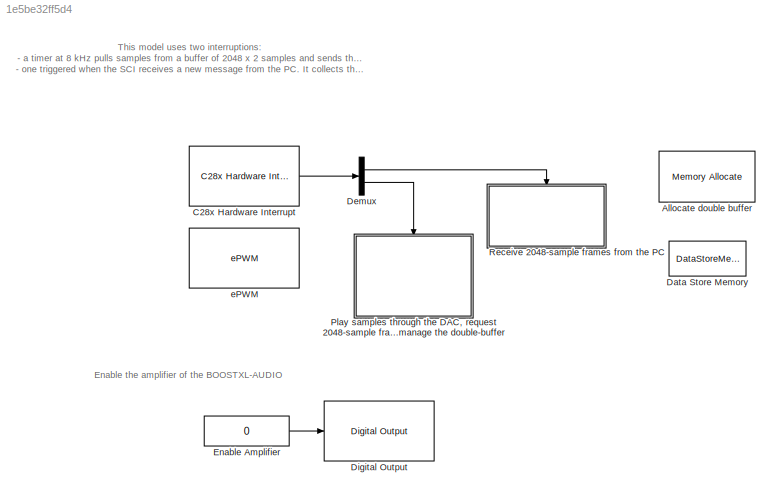
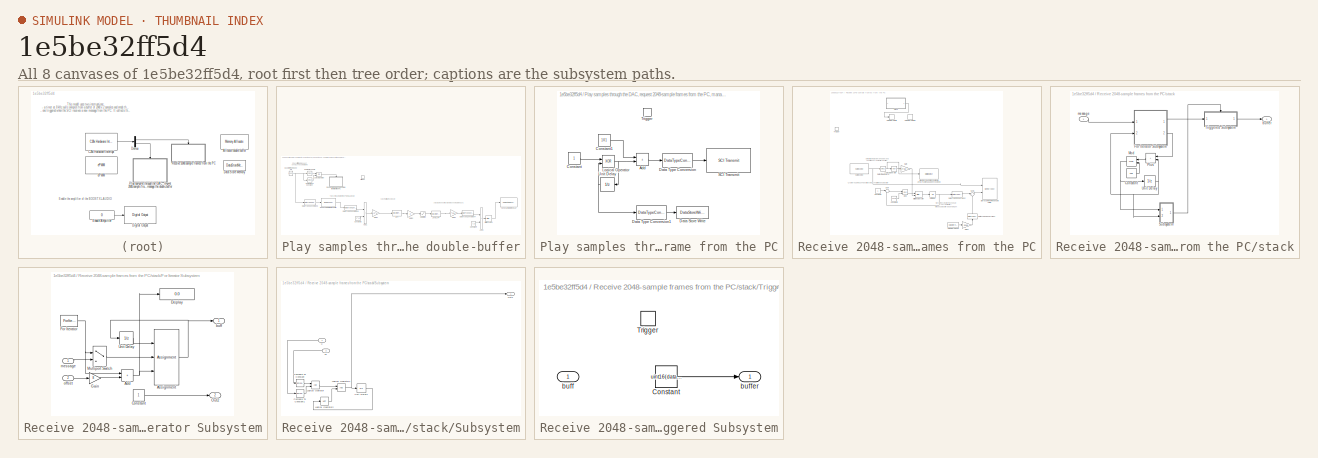
[diagram: thumbnail index - all 8 canvases of the model, root first then tree order]
MODEL slx_1e5be32ff5d4
KIND model
CONFIG AbsTol = auto
CONFIG EnableMultiTasking = on
CONFIG FixedStep = auto
CONFIG MaxStep = auto
CONFIG MinStep = auto
CONFIG RelTol = 1e-3
CONFIG SampleTimeConstraint = Unconstrained
CONFIG SolverName = FixedStepDiscrete
CONFIG StartTime = 0.0
CONFIG StopTime = Inf
BLOCK [Reference] Allocate double buffer  REF=idelinklib_common/Memory Allocate
  Ports = []
  SourceBlock = idelinklib_common/Memory Allocate
  SourceProductBaseCode = ME
  SourceType = Memory Allocate
BLOCK [Reference] C28x Hardware Interrupt  REF=c2000lib/Scheduling/C28x Hardware Interrupt
  Ports = [0, 1]
  SourceBlock = c2000lib/Scheduling/C28x Hardware Interrupt
  SourceProductName = Embedded Coder Support Package for Texas Instruments C2000 Processors
  SourceType = C28x Interrupt Block
BLOCK [DataStoreMemory] Data Store Memory
  DataStoreName = currentBuffer
  OutDataTypeStr = uint16
  ReadBeforeWriteMsg = warning
  ShowAdditionalParam = off
  WriteAfterReadMsg = warning
  WriteAfterWriteMsg = warning
BLOCK [Demux] Demux
  Outputs = 2
  Ports = [1, 2]
BLOCK [Reference] Digital Output  REF=c2837xDlib/Digital Output
  Ports = [1]
  SourceBlock = c2837xDlib/Digital Output
  SourceProductBaseCode = TIC2000
  SourceType = F2837x GPIO Digital Output
  UserDataPersistent = on
BLOCK [Constant] Enable Amplifier
  Value = 0
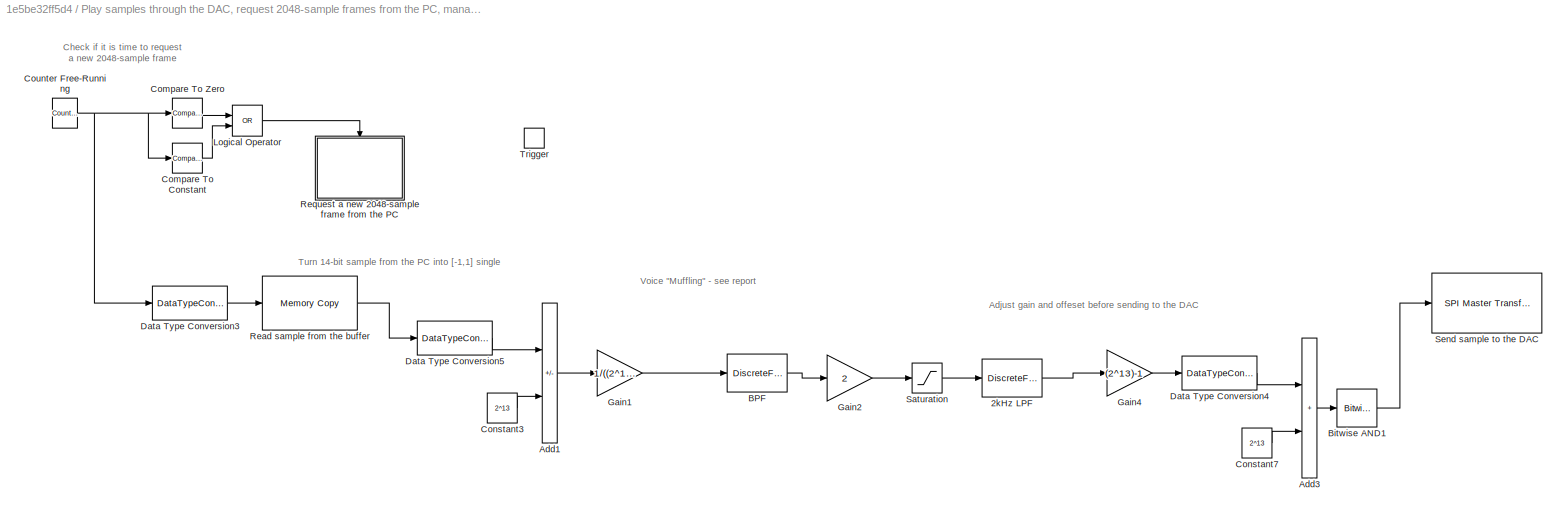
BLOCK [SubSystem] Play samples through the DAC, request 2048-sample frames from the PC, manage the double-buffer
  Ports = [0, 0, 0, 1]
  RequestExecContextInheritance = off
BLOCK [DiscreteFir] Play samples through the DAC, request 2048-sample frames from the PC, manage the double-buffer/2kHz LPF
  Coefficients = [-0.00205063925032961,0.00378653085418793,0.00616289467679460,0.000805272085496790,-0.00619105321528129,-0.00422562938996109,0.00641409213305742,0.0113980376127781,0.000838684894749911,-0.0133553631373625,-0.00965941276446882,0.0115953274270955,0.0218728749275731,0.00110186140706835,-0.0275885156547745,-0.0205402638868228,0.0238804014926574,0.0474588180028014,0.00135236578073890,-0.072451266464097...<+577ch>
  InputPortMap = u0
  OutputPortMap = o0
  Ports = [1, 1]
BLOCK [Sum] Play samples through the DAC, request 2048-sample frames from the PC, manage the double-buffer/Add1
  IconShape = rectangular
  Inputs = +-
  Ports = [2, 1]
BLOCK [Sum] Play samples through the DAC, request 2048-sample frames from the PC, manage the double-buffer/Add3
  IconShape = rectangular
  Ports = [2, 1]
BLOCK [DiscreteFir] Play samples through the DAC, request 2048-sample frames from the PC, manage the double-buffer/BPF
  Coefficients = [0.00906433122814080,0.0114311954910844,0.0165864451409366,0.0212831366969139,0.0244917980834240,0.0252203571073534,0.0226621531633489,0.0163440479923352,0.00619462949151962,-0.00739656620534201,-0.0235980031159551,-0.0411650953828371,-0.0584976005708890,-0.0736938756454693,-0.0847019529380540,-0.0895013292238902,-0.0863878912867318,-0.0742676459667076,-0.0530314219424964,-0.0237492889014628,0.011...<+593ch>
  InputPortMap = u0
  OutputPortMap = o0
  Ports = [1, 1]
BLOCK [Reference] Play samples through the DAC, request 2048-sample frames from the PC, manage the double-buffer/Bitwise AND1  REF=simulink/Logic and Bit
Operations/Bitwise
Operator
  Ports = [1, 1]
  SourceBlock = simulink/Logic and Bit\nOperations/Bitwise\nOperator
  SourceProductBaseCode = SL
  SourceType = Bitwise Operator
BLOCK [Reference] Play samples through the DAC, request 2048-sample frames from the PC, manage the double-buffer/Compare To Constant  REF=simulink/Logic and Bit
Operations/Compare
To Constant
  Ports = [1, 1]
  SourceBlock = simulink/Logic and Bit\nOperations/Compare\nTo Constant
  SourceProductBaseCode = SL
  SourceType = Compare To Constant
BLOCK [Reference] Play samples through the DAC, request 2048-sample frames from the PC, manage the double-buffer/Compare To Zero  REF=simulink/Logic and Bit
Operations/Compare
To Zero
  Ports = [1, 1]
  SourceBlock = simulink/Logic and Bit\nOperations/Compare\nTo Zero
  SourceProductBaseCode = SL
  SourceType = Compare To Zero
BLOCK [Constant] Play samples through the DAC, request 2048-sample frames from the PC, manage the double-buffer/Constant3
  OutDataTypeStr = single
  Value = 2^13
BLOCK [Constant] Play samples through the DAC, request 2048-sample frames from the PC, manage the double-buffer/Constant7
  OutDataTypeStr = uint16
  Value = 2^13
BLOCK [Reference] Play samples through the DAC, request 2048-sample frames from the PC, manage the double-buffer/Counter Free-Running  REF=simulink/Sources/Counter
Free-Running
  Ports = [0, 1]
  SourceBlock = simulink/Sources/Counter\nFree-Running
  SourceProductBaseCode = SL
  SourceType = Counter Free-Running
BLOCK [DataTypeConversion] Play samples through the DAC, request 2048-sample frames from the PC, manage the double-buffer/Data Type Conversion3
  OutDataTypeStr = uint32
  RndMeth = Floor
  SaturateOnIntegerOverflow = off
BLOCK [DataTypeConversion] Play samples through the DAC, request 2048-sample frames from the PC, manage the double-buffer/Data Type Conversion4
  OutDataTypeStr = uint16
  RndMeth = Floor
  SaturateOnIntegerOverflow = off
BLOCK [DataTypeConversion] Play samples through the DAC, request 2048-sample frames from the PC, manage the double-buffer/Data Type Conversion5
  OutDataTypeStr = single
  RndMeth = Floor
  SaturateOnIntegerOverflow = off
BLOCK [Gain] Play samples through the DAC, request 2048-sample frames from the PC, manage the double-buffer/Gain1
  Gain = 1/((2^13)-1)
BLOCK [Gain] Play samples through the DAC, request 2048-sample frames from the PC, manage the double-buffer/Gain2
  Gain = 2
BLOCK [Gain] Play samples through the DAC, request 2048-sample frames from the PC, manage the double-buffer/Gain4
  Gain = (2^13)-1
BLOCK [Logic] Play samples through the DAC, request 2048-sample frames from the PC, manage the double-buffer/Logical Operator
  AllPortsSameDT = off
  Operator = OR
  OutDataTypeStr = boolean
  Ports = [2, 1]
BLOCK [Reference] Play samples through the DAC, request 2048-sample frames from the PC, manage the double-buffer/Read sample from the buffer  REF=idelinklib_common/Memory Copy
  Ports = [1, 1]
  SourceBlock = idelinklib_common/Memory Copy
  SourceProductBaseCode = ME
  SourceType = Memory Copy
BLOCK [SubSystem] Play samples through the DAC, request 2048-sample frames from the PC, manage the double-buffer/Request a new 2048-sample frame from the PC
  Ports = [0, 0, 0, 1]
  RequestExecContextInheritance = off
BLOCK [Sum] Play samples through the DAC, request 2048-sample frames from the PC, manage the double-buffer/Request a new 2048-sample frame from the PC/Add
  IconShape = rectangular
  Ports = [2, 1]
BLOCK [Constant] Play samples through the DAC, request 2048-sample frames from the PC, manage the double-buffer/Request a new 2048-sample frame from the PC/Constant
  OutDataTypeStr = boolean
  SampleTime = -1
BLOCK [Constant] Play samples through the DAC, request 2048-sample frames from the PC, manage the double-buffer/Request a new 2048-sample frame from the PC/Constant1
  OutDataTypeStr = uint8
  SampleTime = -1
  Value = 101
BLOCK [DataStoreWrite] Play samples through the DAC, request 2048-sample frames from the PC, manage the double-buffer/Request a new 2048-sample frame from the PC/Data Store Write
  DataStoreName = currentBuffer
  Ports = [1]
BLOCK [DataTypeConversion] Play samples through the DAC, request 2048-sample frames from the PC, manage the double-buffer/Request a new 2048-sample frame from the PC/Data Type Conversion
  OutDataTypeStr = uint8
  RndMeth = Floor
  SaturateOnIntegerOverflow = off
BLOCK [DataTypeConversion] Play samples through the DAC, request 2048-sample frames from the PC, manage the double-buffer/Request a new 2048-sample frame from the PC/Data Type Conversion1
  OutDataTypeStr = uint16
  RndMeth = Floor
  SaturateOnIntegerOverflow = off
BLOCK [Logic] Play samples through the DAC, request 2048-sample frames from the PC, manage the double-buffer/Request a new 2048-sample frame from the PC/Logical Operator
  AllPortsSameDT = off
  Operator = XOR
  OutDataTypeStr = boolean
  Ports = [2, 1]
BLOCK [Reference] Play samples through the DAC, request 2048-sample frames from the PC, manage the double-buffer/Request a new 2048-sample frame from the PC/SCI Transmit  REF=c280xlib/SCI Transmit
  Ports = [1]
  SourceBlock = c280xlib/SCI Transmit
  SourceProductName = Embedded Coder Support Package for Texas Instruments C2000 Processors
  SourceType = C28x SCI Transmit
BLOCK [TriggerPort] Play samples through the DAC, request 2048-sample frames from the PC, manage the double-buffer/Request a new 2048-sample frame from the PC/Trigger
  PortDimensions = 1
  Ports = []
  StatesWhenEnabling = held
  VariantControl = Variant
BLOCK [UnitDelay] Play samples through the DAC, request 2048-sample frames from the PC, manage the double-buffer/Request a new 2048-sample frame from the PC/Unit Delay
  HasFrameUpgradeWarning = on
  NameLocation = top
  SampleTime = -1
BLOCK [Saturate] Play samples through the DAC, request 2048-sample frames from the PC, manage the double-buffer/Saturation
  UpperLimit = 0.1
BLOCK [Reference] Play samples through the DAC, request 2048-sample frames from the PC, manage the double-buffer/Send sample to the DAC  REF=c280xlib/SPI Master Transfer
  Ports = [1, 1]
  SourceBlock = c280xlib/SPI Master Transfer
  SourceProductName = Embedded Coder Support Package for Texas Instruments C2000 Processors
  SourceType = codertarget.tic2000.blocks.SPIMasterTransfer
BLOCK [TriggerPort] Play samples through the DAC, request 2048-sample frames from the PC, manage the double-buffer/Trigger
  PortDimensions = 1
  Ports = []
  StatesWhenEnabling = held
  TriggerType = function-call
  VariantControl = Variant
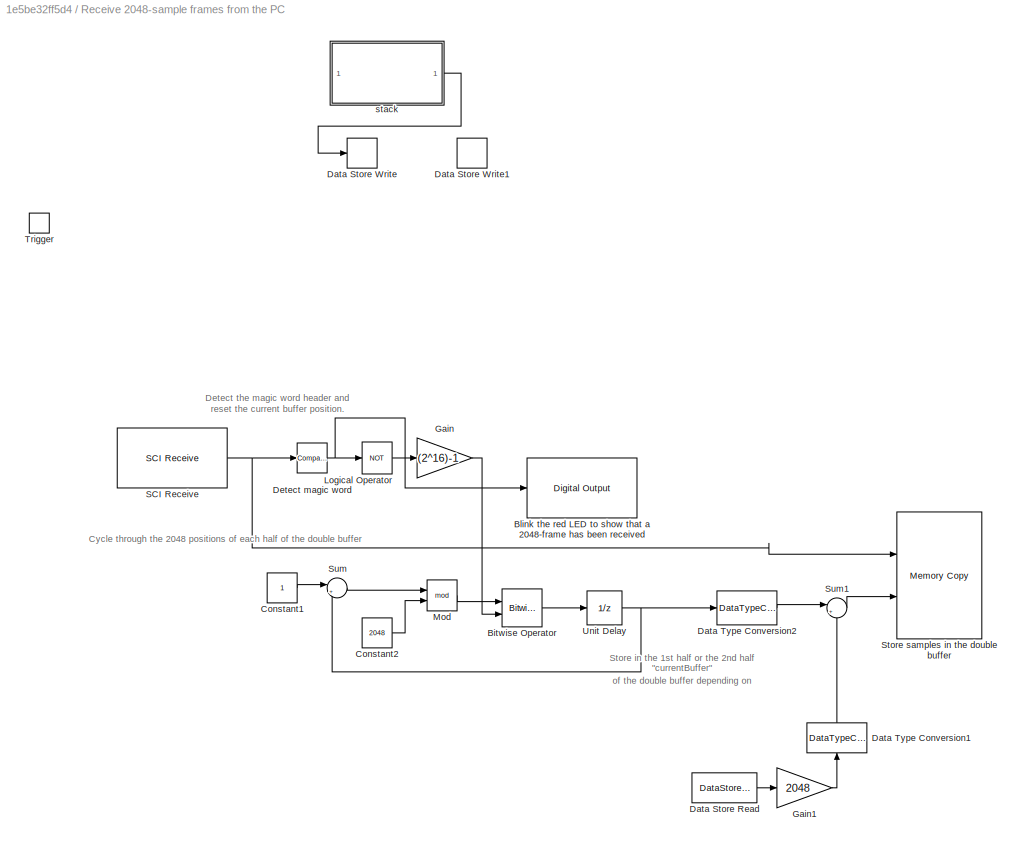
BLOCK [SubSystem] Receive 2048-sample frames from the PC
  Ports = [0, 0, 0, 1]
  RequestExecContextInheritance = off
BLOCK [Reference] Receive 2048-sample frames from the PC/Bitwise Operator  REF=simulink/Logic and Bit
Operations/Bitwise
Operator
  Ports = [2, 1]
  SourceBlock = simulink/Logic and Bit\nOperations/Bitwise\nOperator
  SourceProductBaseCode = SL
  SourceType = Bitwise Operator
BLOCK [Reference] Receive 2048-sample frames from the PC/Blink the red LED to show that a 2048-frame has been received  REF=c2837xDlib/Digital Output
  Ports = [1]
  SourceBlock = c2837xDlib/Digital Output
  SourceProductBaseCode = TIC2000
  SourceType = F2837x GPIO Digital Output
  UserDataPersistent = on
BLOCK [Constant] Receive 2048-sample frames from the PC/Constant1
  OutDataTypeStr = uint16
  SampleTime = -1
BLOCK [Constant] Receive 2048-sample frames from the PC/Constant2
  OutDataTypeStr = uint16
  SampleTime = -1
  Value = 2048
BLOCK [DataStoreRead] Receive 2048-sample frames from the PC/Data Store Read
  DataStoreName = currentBuffer
  Ports = [0, 1]
BLOCK [DataStoreWrite] Receive 2048-sample frames from the PC/Data Store Write
  Commented = on
  DataStoreElements = A(:)
  Ports = [1]
BLOCK [DataStoreWrite] Receive 2048-sample frames from the PC/Data Store Write1
  Commented = on
  DataStoreElements = A(:)
  Ports = [1]
BLOCK [DataTypeConversion] Receive 2048-sample frames from the PC/Data Type Conversion1
  NameLocation = right
  OutDataTypeStr = uint32
  RndMeth = Floor
  SaturateOnIntegerOverflow = off
BLOCK [DataTypeConversion] Receive 2048-sample frames from the PC/Data Type Conversion2
  OutDataTypeStr = uint32
  RndMeth = Floor
  SaturateOnIntegerOverflow = off
BLOCK [Reference] Receive 2048-sample frames from the PC/Detect magic word  REF=simulink/Logic and Bit
Operations/Compare
To Constant
  Ports = [1, 1]
  SourceBlock = simulink/Logic and Bit\nOperations/Compare\nTo Constant
  SourceProductBaseCode = SL
  SourceType = Compare To Constant
BLOCK [Gain] Receive 2048-sample frames from the PC/Gain
  Gain = (2^16)-1
  OutDataTypeStr = uint16
BLOCK [Gain] Receive 2048-sample frames from the PC/Gain1
  Gain = 2048
  OutDataTypeStr = uint16
BLOCK [Logic] Receive 2048-sample frames from the PC/Logical Operator
  AllPortsSameDT = off
  Operator = NOT
  OutDataTypeStr = boolean
  Ports = [1, 1]
BLOCK [Math] Receive 2048-sample frames from the PC/Mod
  Operator = mod
  Ports = [2, 1]
BLOCK [Reference] Receive 2048-sample frames from the PC/SCI Receive  REF=c280xlib/SCI Receive
  Ports = [0, 1]
  SourceBlock = c280xlib/SCI Receive
  SourceProductName = Embedded Coder Support Package for Texas Instruments C2000 Processors
  SourceType = C28x SCI Receive
BLOCK [Reference] Receive 2048-sample frames from the PC/Store samples in the double buffer  REF=idelinklib_common/Memory Copy
  Ports = [2]
  SourceBlock = idelinklib_common/Memory Copy
  SourceProductBaseCode = ME
  SourceType = Memory Copy
BLOCK [Sum] Receive 2048-sample frames from the PC/Sum
  Inputs = |++
  Ports = [2, 1]
BLOCK [Sum] Receive 2048-sample frames from the PC/Sum1
  Inputs = |++
  Ports = [2, 1]
BLOCK [TriggerPort] Receive 2048-sample frames from the PC/Trigger
  PortDimensions = 1
  Ports = []
  StatesWhenEnabling = held
  TriggerType = function-call
  VariantControl = Variant
BLOCK [UnitDelay] Receive 2048-sample frames from the PC/Unit Delay
  HasFrameUpgradeWarning = on
  SampleTime = -1
BLOCK [SubSystem] Receive 2048-sample frames from the PC/stack
  Commented = on
  Ports = [1, 1]
  RequestExecContextInheritance = off
BLOCK [Constant] Receive 2048-sample frames from the PC/stack/Constant
  SampleTime = -1
  Value = 128
BLOCK [SubSystem] Receive 2048-sample frames from the PC/stack/For Iterator Subsystem
  Ports = [2, 2]
  RequestExecContextInheritance = off
  TreatAsAtomicUnit = on
BLOCK [Sum] Receive 2048-sample frames from the PC/stack/For Iterator Subsystem/Add
  IconShape = rectangular
  Ports = [2, 1]
BLOCK [Assignment] Receive 2048-sample frames from the PC/stack/For Iterator Subsystem/Assignment
  DiagnosticForDimensions = Warning
  IndexOptions = Index vector (port)
  Indices = 1
  OutputSizes = 1
  Ports = [3, 1]
BLOCK [Constant] Receive 2048-sample frames from the PC/stack/For Iterator Subsystem/Constant
  SampleTime = -1
BLOCK [Display] Receive 2048-sample frames from the PC/stack/For Iterator Subsystem/Display
  Decimation = 1
  Ports = [1]
BLOCK [ForIterator] Receive 2048-sample frames from the PC/stack/For Iterator Subsystem/For Iterator
  IterationLimit = 8
  Ports = [0, 1]
BLOCK [Gain] Receive 2048-sample frames from the PC/stack/For Iterator Subsystem/Gain
  Gain = 8
BLOCK [MultiPortSwitch] Receive 2048-sample frames from the PC/stack/For Iterator Subsystem/Multiport Switch
  InputSameDT = off
  Inputs = 1
  Ports = [2, 1]
  SaturateOnIntegerOverflow = off
BLOCK [Outport] Receive 2048-sample frames from the PC/stack/For Iterator Subsystem/Out2
  Port = 2
BLOCK [UnitDelay] Receive 2048-sample frames from the PC/stack/For Iterator Subsystem/Unit Delay
  HasFrameUpgradeWarning = on
  InitialCondition = zeros(8*128,1)
  SampleTime = -1
BLOCK [Outport] Receive 2048-sample frames from the PC/stack/For Iterator Subsystem/buff
BLOCK [Inport] Receive 2048-sample frames from the PC/stack/For Iterator Subsystem/message
BLOCK [Inport] Receive 2048-sample frames from the PC/stack/For Iterator Subsystem/offset
  Port = 2
BLOCK [Math] Receive 2048-sample frames from the PC/stack/Mod
  NameLocation = top
  Operator = mod
  Ports = [2, 1]
BLOCK [Sum] Receive 2048-sample frames from the PC/stack/Plus
  IconShape = rectangular
  NameLocation = top
  Ports = [2, 1]
BLOCK [SubSystem] Receive 2048-sample frames from the PC/stack/Subsystem
  Ports = [2, 1]
  RequestExecContextInheritance = off
BLOCK [Reference] Receive 2048-sample frames from the PC/stack/Subsystem/Compare To Constant  REF=simulink/Logic and Bit
Operations/Compare
To Constant
  Ports = [1, 1]
  SourceBlock = simulink/Logic and Bit\nOperations/Compare\nTo Constant
  SourceProductBaseCode = SL
  SourceType = Compare To Constant
BLOCK [Reference] Receive 2048-sample frames from the PC/stack/Subsystem/Compare To Constant1  REF=simulink/Logic and Bit
Operations/Compare
To Constant
  Ports = [1, 1]
  SourceBlock = simulink/Logic and Bit\nOperations/Compare\nTo Constant
  SourceProductBaseCode = SL
  SourceType = Compare To Constant
BLOCK [Logic] Receive 2048-sample frames from the PC/stack/Subsystem/Logical Operator
  AllPortsSameDT = off
  OutDataTypeStr = boolean
  Ports = [2, 1]
BLOCK [Logic] Receive 2048-sample frames from the PC/stack/Subsystem/Logical Operator1
  AllPortsSameDT = off
  OutDataTypeStr = boolean
  Ports = [2, 1]
BLOCK [Logic] Receive 2048-sample frames from the PC/stack/Subsystem/Logical Operator2
  AllPortsSameDT = off
  Operator = NOT
  OutDataTypeStr = boolean
  Ports = [1, 1]
BLOCK [Outport] Receive 2048-sample frames from the PC/stack/Subsystem/Out1
BLOCK [UnitDelay] Receive 2048-sample frames from the PC/stack/Subsystem/Unit Delay1
  HasFrameUpgradeWarning = on
  InitialCondition = 127
  SampleTime = -1
BLOCK [Inport] Receive 2048-sample frames from the PC/stack/Subsystem/u
BLOCK [Inport] Receive 2048-sample frames from the PC/stack/Subsystem/u1
  Port = 2
BLOCK [SubSystem] Receive 2048-sample frames from the PC/stack/Triggered Subsystem
  Ports = [1, 1, 0, 1]
  RequestExecContextInheritance = off
  TreatAsAtomicUnit = on
BLOCK [Constant] Receive 2048-sample frames from the PC/stack/Triggered Subsystem/Constant
  SampleTime = -1
  Value = uint16(data(1:1024,1))
BLOCK [TriggerPort] Receive 2048-sample frames from the PC/stack/Triggered Subsystem/Trigger
  Ports = []
  StatesWhenEnabling = held
  VariantControl = Variant
BLOCK [Inport] Receive 2048-sample frames from the PC/stack/Triggered Subsystem/buff
BLOCK [Outport] Receive 2048-sample frames from the PC/stack/Triggered Subsystem/buffer
BLOCK [UnitDelay] Receive 2048-sample frames from the PC/stack/Unit Delay
  HasFrameUpgradeWarning = on
  InitialCondition = 127
  SampleTime = -1
BLOCK [Outport] Receive 2048-sample frames from the PC/stack/buffer
BLOCK [Inport] Receive 2048-sample frames from the PC/stack/message
BLOCK [Reference] ePWM  REF=c2802xlib/ePWM
  Ports = []
  SourceBlock = c2802xlib/ePWM
  SourceProductName = Embedded Coder Support Package for Texas Instruments C2000 Processors
  SourceType = C2802x/03x/05x/06x/M3x/37x/07x/004x/38x ePWM
  UserDataPersistent = on
ANNOTATION (root): Enable the amplifier of the BOOSTXL-AUDIO
ANNOTATION (root): This model uses two interruptions: - a timer at 8 kHz pulls samples from a buffer of 2048 x 2 samples and sends them to the DAC, it also tells the PC when to send a new frame of 2048 samples and marks what position in the double buffer the new samples should be stored. - one triggered when the SCI receives a new message from the PC. It collects the samples and stores them in the double buffer.
ANNOTATION Play samples through the DAC, request 2048-sample frames from the PC, manage the double-buffer: Adjust gain and offeset before sending to the DAC
ANNOTATION Play samples through the DAC, request 2048-sample frames from the PC, manage the double-buffer: Check if it is time to request a new 2048-sample frame
ANNOTATION Play samples through the DAC, request 2048-sample frames from the PC, manage the double-buffer: Turn 14-bit sample from the PC into [-1,1] single
ANNOTATION Play samples through the DAC, request 2048-sample frames from the PC, manage the double-buffer: Voice "Muffling" - see report
ANNOTATION Receive 2048-sample frames from the PC: Cycle through the 2048 positions of each half of the double buffer
ANNOTATION Receive 2048-sample frames from the PC: Detect the magic word header and reset the current buffer position.
ANNOTATION Receive 2048-sample frames from the PC: Store in the 1st half or the 2nd half of the double buffer depending on "currentBuffer"
LINE C28x Hardware Interrupt:1 -> Demux:1
LINE Demux:1 -> Receive 2048-sample frames from the PC:trigger
LINE Demux:2 -> Play samples through the DAC, request 2048-sample frames from the PC, manage the double-buffer:trigger
LINE Enable Amplifier:1 -> Digital Output:1
LINE Play samples through the DAC, request 2048-sample frames from the PC, manage the double-buffer/2kHz LPF:1 -> Play samples through the DAC, request 2048-sample frames from the PC, manage the double-buffer/Gain4:1
LINE Play samples through the DAC, request 2048-sample frames from the PC, manage the double-buffer/Add1:1 -> Play samples through the DAC, request 2048-sample frames from the PC, manage the double-buffer/Gain1:1
LINE Play samples through the DAC, request 2048-sample frames from the PC, manage the double-buffer/Add3:1 -> Play samples through the DAC, request 2048-sample frames from the PC, manage the double-buffer/Bitwise AND1:1
LINE Play samples through the DAC, request 2048-sample frames from the PC, manage the double-buffer/BPF:1 -> Play samples through the DAC, request 2048-sample frames from the PC, manage the double-buffer/Gain2:1
LINE Play samples through the DAC, request 2048-sample frames from the PC, manage the double-buffer/Bitwise AND1:1 -> Play samples through the DAC, request 2048-sample frames from the PC, manage the double-buffer/Send sample to the DAC:1
LINE Play samples through the DAC, request 2048-sample frames from the PC, manage the double-buffer/Compare To Constant:1 -> Play samples through the DAC, request 2048-sample frames from the PC, manage the double-buffer/Logical Operator:2
LINE Play samples through the DAC, request 2048-sample frames from the PC, manage the double-buffer/Compare To Zero:1 -> Play samples through the DAC, request 2048-sample frames from the PC, manage the double-buffer/Logical Operator:1
LINE Play samples through the DAC, request 2048-sample frames from the PC, manage the double-buffer/Constant3:1 -> Play samples through the DAC, request 2048-sample frames from the PC, manage the double-buffer/Add1:2
LINE Play samples through the DAC, request 2048-sample frames from the PC, manage the double-buffer/Constant7:1 -> Play samples through the DAC, request 2048-sample frames from the PC, manage the double-buffer/Add3:2
NET Play samples through the DAC, request 2048-sample frames from the PC, manage the double-buffer/Counter Free-Running:1 -> Play samples through the DAC, request 2048-sample frames from the PC, manage the double-buffer/Compare To Constant:1, Play samples through the DAC, request 2048-sample frames from the PC, manage the double-buffer/Compare To Zero:1, Play samples through the DAC, request 2048-sample frames from the PC, manage the double-buffer/Data Type Conversion3:1
LINE Play samples through the DAC, request 2048-sample frames from the PC, manage the double-buffer/Data Type Conversion3:1 -> Play samples through the DAC, request 2048-sample frames from the PC, manage the double-buffer/Read sample from the buffer:1
LINE Play samples through the DAC, request 2048-sample frames from the PC, manage the double-buffer/Data Type Conversion4:1 -> Play samples through the DAC, request 2048-sample frames from the PC, manage the double-buffer/Add3:1
LINE Play samples through the DAC, request 2048-sample frames from the PC, manage the double-buffer/Data Type Conversion5:1 -> Play samples through the DAC, request 2048-sample frames from the PC, manage the double-buffer/Add1:1
LINE Play samples through the DAC, request 2048-sample frames from the PC, manage the double-buffer/Gain1:1 -> Play samples through the DAC, request 2048-sample frames from the PC, manage the double-buffer/BPF:1
LINE Play samples through the DAC, request 2048-sample frames from the PC, manage the double-buffer/Gain2:1 -> Play samples through the DAC, request 2048-sample frames from the PC, manage the double-buffer/Saturation:1
LINE Play samples through the DAC, request 2048-sample frames from the PC, manage the double-buffer/Gain4:1 -> Play samples through the DAC, request 2048-sample frames from the PC, manage the double-buffer/Data Type Conversion4:1
LINE Play samples through the DAC, request 2048-sample frames from the PC, manage the double-buffer/Logical Operator:1 -> Play samples through the DAC, request 2048-sample frames from the PC, manage the double-buffer/Request a new 2048-sample frame from the PC:trigger
LINE Play samples through the DAC, request 2048-sample frames from the PC, manage the double-buffer/Read sample from the buffer:1 -> Play samples through the DAC, request 2048-sample frames from the PC, manage the double-buffer/Data Type Conversion5:1
LINE Play samples through the DAC, request 2048-sample frames from the PC, manage the double-buffer/Request a new 2048-sample frame from the PC/Add:1 -> Play samples through the DAC, request 2048-sample frames from the PC, manage the double-buffer/Request a new 2048-sample frame from the PC/Data Type Conversion:1
LINE Play samples through the DAC, request 2048-sample frames from the PC, manage the double-buffer/Request a new 2048-sample frame from the PC/Constant1:1 -> Play samples through the DAC, request 2048-sample frames from the PC, manage the double-buffer/Request a new 2048-sample frame from the PC/Add:1
LINE Play samples through the DAC, request 2048-sample frames from the PC, manage the double-buffer/Request a new 2048-sample frame from the PC/Constant:1 -> Play samples through the DAC, request 2048-sample frames from the PC, manage the double-buffer/Request a new 2048-sample frame from the PC/Logical Operator:1
LINE Play samples through the DAC, request 2048-sample frames from the PC, manage the double-buffer/Request a new 2048-sample frame from the PC/Data Type Conversion1:1 -> Play samples through the DAC, request 2048-sample frames from the PC, manage the double-buffer/Request a new 2048-sample frame from the PC/Data Store Write:1
LINE Play samples through the DAC, request 2048-sample frames from the PC, manage the double-buffer/Request a new 2048-sample frame from the PC/Data Type Conversion:1 -> Play samples through the DAC, request 2048-sample frames from the PC, manage the double-buffer/Request a new 2048-sample frame from the PC/SCI Transmit:1
NET Play samples through the DAC, request 2048-sample frames from the PC, manage the double-buffer/Request a new 2048-sample frame from the PC/Logical Operator:1 -> Play samples through the DAC, request 2048-sample frames from the PC, manage the double-buffer/Request a new 2048-sample frame from the PC/Add:2, Play samples through the DAC, request 2048-sample frames from the PC, manage the double-buffer/Request a new 2048-sample frame from the PC/Unit Delay:1
NET Play samples through the DAC, request 2048-sample frames from the PC, manage the double-buffer/Request a new 2048-sample frame from the PC/Unit Delay:1 -> Play samples through the DAC, request 2048-sample frames from the PC, manage the double-buffer/Request a new 2048-sample frame from the PC/Data Type Conversion1:1, Play samples through the DAC, request 2048-sample frames from the PC, manage the double-buffer/Request a new 2048-sample frame from the PC/Logical Operator:2
LINE Play samples through the DAC, request 2048-sample frames from the PC, manage the double-buffer/Saturation:1 -> Play samples through the DAC, request 2048-sample frames from the PC, manage the double-buffer/2kHz LPF:1
LINE Receive 2048-sample frames from the PC/Bitwise Operator:1 -> Receive 2048-sample frames from the PC/Unit Delay:1
LINE Receive 2048-sample frames from the PC/Constant1:1 -> Receive 2048-sample frames from the PC/Sum:1
LINE Receive 2048-sample frames from the PC/Constant2:1 -> Receive 2048-sample frames from the PC/Mod:2
LINE Receive 2048-sample frames from the PC/Data Store Read:1 -> Receive 2048-sample frames from the PC/Gain1:1
LINE Receive 2048-sample frames from the PC/Data Type Conversion1:1 -> Receive 2048-sample frames from the PC/Sum1:2
LINE Receive 2048-sample frames from the PC/Data Type Conversion2:1 -> Receive 2048-sample frames from the PC/Sum1:1
NET Receive 2048-sample frames from the PC/Detect magic word:1 -> Receive 2048-sample frames from the PC/Blink the red LED to show that a 2048-frame has been received:1, Receive 2048-sample frames from the PC/Logical Operator:1
LINE Receive 2048-sample frames from the PC/Gain1:1 -> Receive 2048-sample frames from the PC/Data Type Conversion1:1
LINE Receive 2048-sample frames from the PC/Gain:1 -> Receive 2048-sample frames from the PC/Bitwise Operator:2
LINE Receive 2048-sample frames from the PC/Logical Operator:1 -> Receive 2048-sample frames from the PC/Gain:1
LINE Receive 2048-sample frames from the PC/Mod:1 -> Receive 2048-sample frames from the PC/Bitwise Operator:1
NET Receive 2048-sample frames from the PC/SCI Receive:1 -> Receive 2048-sample frames from the PC/Detect magic word:1, Receive 2048-sample frames from the PC/Store samples in the double buffer:1
LINE Receive 2048-sample frames from the PC/Sum1:1 -> Receive 2048-sample frames from the PC/Store samples in the double buffer:2
LINE Receive 2048-sample frames from the PC/Sum:1 -> Receive 2048-sample frames from the PC/Mod:1
NET Receive 2048-sample frames from the PC/Unit Delay:1 -> Receive 2048-sample frames from the PC/Data Type Conversion2:1, Receive 2048-sample frames from the PC/Sum:2
LINE Receive 2048-sample frames from the PC/stack/Constant:1 -> Receive 2048-sample frames from the PC/stack/Mod:2
NET Receive 2048-sample frames from the PC/stack/For Iterator Subsystem/Add:1 -> Receive 2048-sample frames from the PC/stack/For Iterator Subsystem/Assignment:3, Receive 2048-sample frames from the PC/stack/For Iterator Subsystem/Display:1
NET Receive 2048-sample frames from the PC/stack/For Iterator Subsystem/Assignment:1 -> Receive 2048-sample frames from the PC/stack/For Iterator Subsystem/Unit Delay:1, Receive 2048-sample frames from the PC/stack/For Iterator Subsystem/buff:1
LINE Receive 2048-sample frames from the PC/stack/For Iterator Subsystem/Constant:1 -> Receive 2048-sample frames from the PC/stack/For Iterator Subsystem/Out2:1
NET Receive 2048-sample frames from the PC/stack/For Iterator Subsystem/For Iterator:1 -> Receive 2048-sample frames from the PC/stack/For Iterator Subsystem/Add:1, Receive 2048-sample frames from the PC/stack/For Iterator Subsystem/Multiport Switch:1
LINE Receive 2048-sample frames from the PC/stack/For Iterator Subsystem/Gain:1 -> Receive 2048-sample frames from the PC/stack/For Iterator Subsystem/Add:2
LINE Receive 2048-sample frames from the PC/stack/For Iterator Subsystem/Multiport Switch:1 -> Receive 2048-sample frames from the PC/stack/For Iterator Subsystem/Assignment:2
LINE Receive 2048-sample frames from the PC/stack/For Iterator Subsystem/Unit Delay:1 -> Receive 2048-sample frames from the PC/stack/For Iterator Subsystem/Assignment:1
LINE Receive 2048-sample frames from the PC/stack/For Iterator Subsystem/message:1 -> Receive 2048-sample frames from the PC/stack/For Iterator Subsystem/Multiport Switch:2
LINE Receive 2048-sample frames from the PC/stack/For Iterator Subsystem/offset:1 -> Receive 2048-sample frames from the PC/stack/For Iterator Subsystem/Gain:1
LINE Receive 2048-sample frames from the PC/stack/For Iterator Subsystem:1 -> Receive 2048-sample frames from the PC/stack/Triggered Subsystem:1
LINE Receive 2048-sample frames from the PC/stack/For Iterator Subsystem:2 -> Receive 2048-sample frames from the PC/stack/Plus:1
NET Receive 2048-sample frames from the PC/stack/Mod:1 -> Receive 2048-sample frames from the PC/stack/Subsystem:1, Receive 2048-sample frames from the PC/stack/Unit Delay:1
LINE Receive 2048-sample frames from the PC/stack/Plus:1 -> Receive 2048-sample frames from the PC/stack/Mod:1
LINE Receive 2048-sample frames from the PC/stack/Subsystem/Compare To Constant1:1 -> Receive 2048-sample frames from the PC/stack/Subsystem/Logical Operator:2
LINE Receive 2048-sample frames from the PC/stack/Subsystem/Compare To Constant:1 -> Receive 2048-sample frames from the PC/stack/Subsystem/Logical Operator:1
NET Receive 2048-sample frames from the PC/stack/Subsystem/Logical Operator1:1 -> Receive 2048-sample frames from the PC/stack/Subsystem/Out1:1, Receive 2048-sample frames from the PC/stack/Subsystem/Unit Delay1:1
LINE Receive 2048-sample frames from the PC/stack/Subsystem/Logical Operator2:1 -> Receive 2048-sample frames from the PC/stack/Subsystem/Logical Operator1:2
LINE Receive 2048-sample frames from the PC/stack/Subsystem/Logical Operator:1 -> Receive 2048-sample frames from the PC/stack/Subsystem/Logical Operator1:1
LINE Receive 2048-sample frames from the PC/stack/Subsystem/Unit Delay1:1 -> Receive 2048-sample frames from the PC/stack/Subsystem/Logical Operator2:1
LINE Receive 2048-sample frames from the PC/stack/Subsystem/u1:1 -> Receive 2048-sample frames from the PC/stack/Subsystem/Compare To Constant:1
LINE Receive 2048-sample frames from the PC/stack/Subsystem/u:1 -> Receive 2048-sample frames from the PC/stack/Subsystem/Compare To Constant1:1
LINE Receive 2048-sample frames from the PC/stack/Subsystem:1 -> Receive 2048-sample frames from the PC/stack/Triggered Subsystem:trigger
LINE Receive 2048-sample frames from the PC/stack/Triggered Subsystem/Constant:1 -> Receive 2048-sample frames from the PC/stack/Triggered Subsystem/buffer:1
LINE Receive 2048-sample frames from the PC/stack/Triggered Subsystem:1 -> Receive 2048-sample frames from the PC/stack/buffer:1
NET Receive 2048-sample frames from the PC/stack/Unit Delay:1 -> Receive 2048-sample frames from the PC/stack/For Iterator Subsystem:2, Receive 2048-sample frames from the PC/stack/Plus:2, Receive 2048-sample frames from the PC/stack/Subsystem:2
LINE Receive 2048-sample frames from the PC/stack/message:1 -> Receive 2048-sample frames from the PC/stack/For Iterator Subsystem:1
LINE Receive 2048-sample frames from the PC/stack:1 -> Receive 2048-sample frames from the PC/Data Store Write:1
note: NET lines group one-source signal fan-out (src -> all destinations, sorted); 1:1 wires keep LINE
